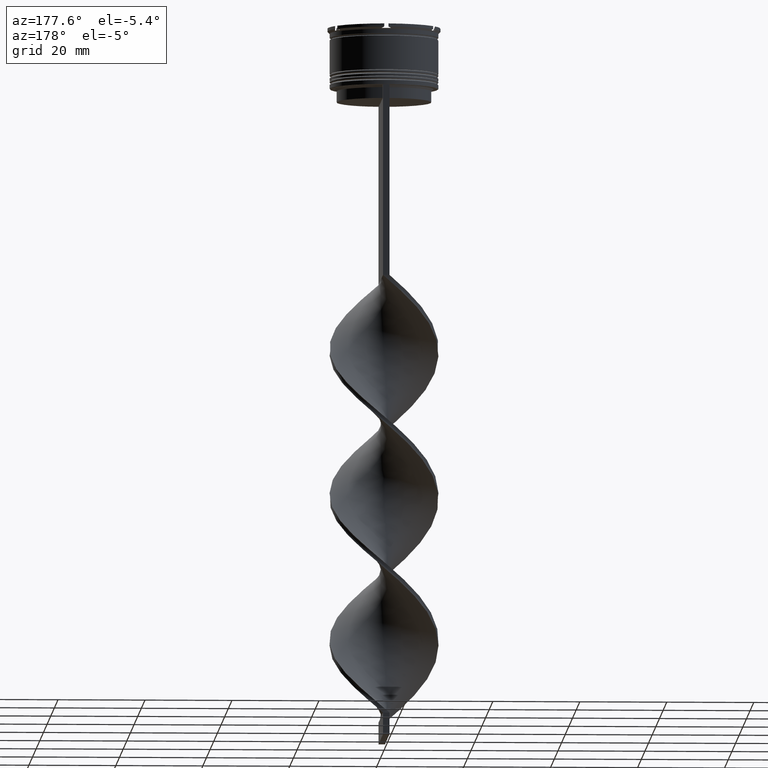
[diagram: clean part render]
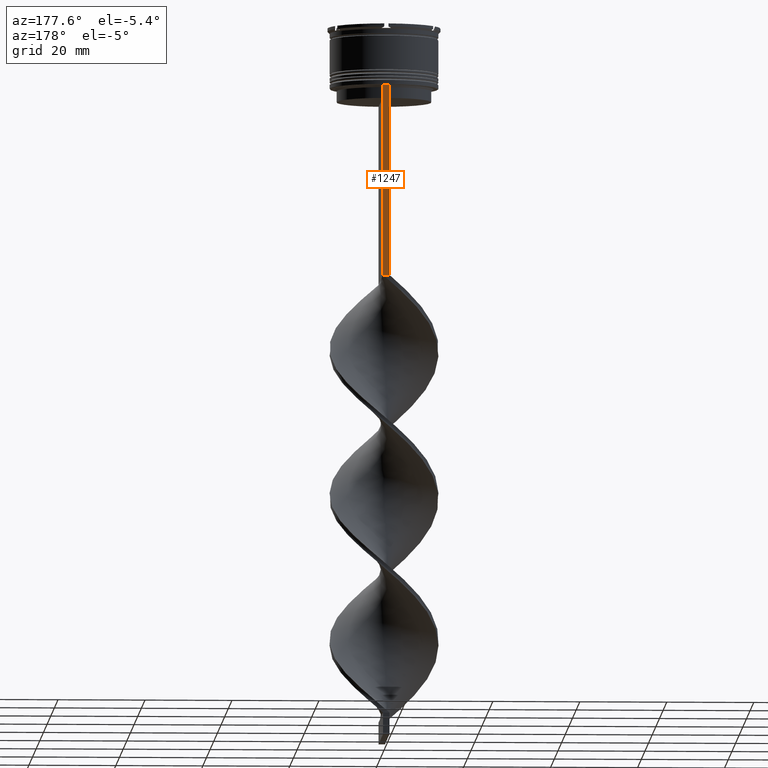
[diagram: same view with one face highlighted and labeled with its STEP entity id]
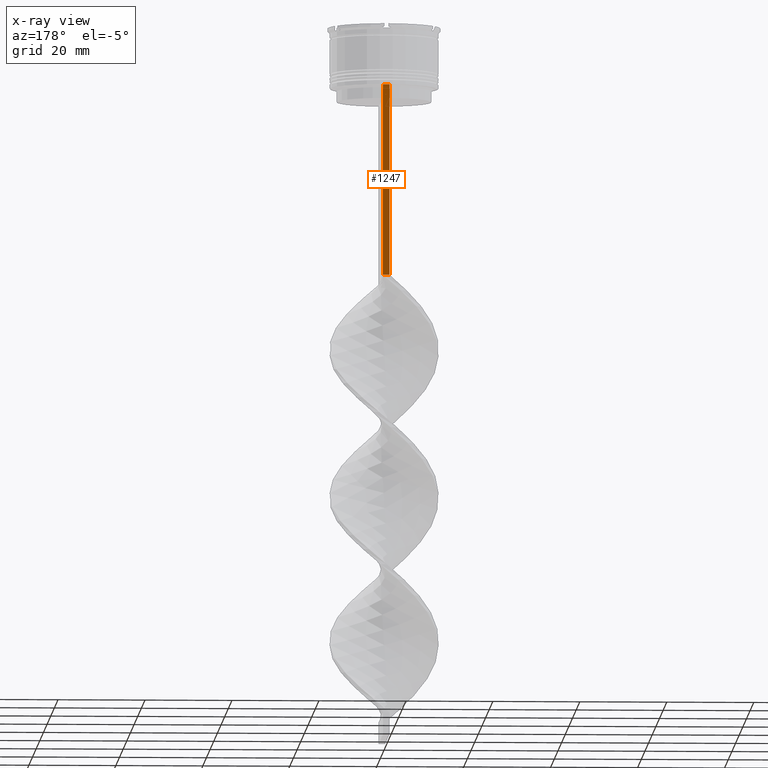
[diagram: x-ray of the same camera — body ghosted, the highlighted face saturated]
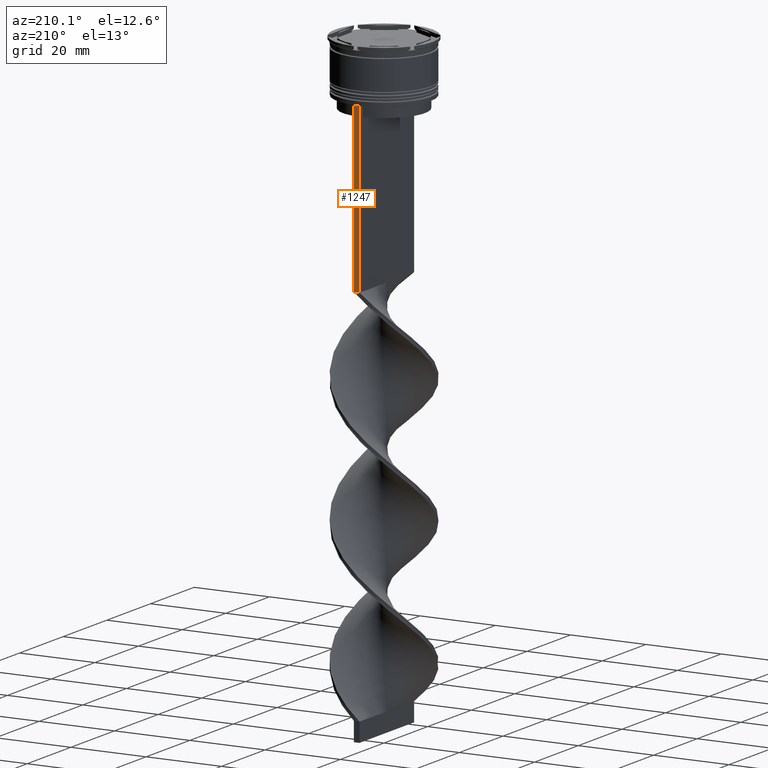
[diagram: same view with one face highlighted and labeled with its STEP entity id]
A machine part, auxiliary view. The second image highlights one B-rep face of the part: STEP entity #1247.
The next image is the same camera in x-ray: the body ghosted, the highlighted face saturated — about 0% of this face is hidden behind the body in this view.
A second angle (auxiliary view) of the same face is appended — the face is thin or edge-on in the first view.
In plain terms, the highlighted planar face has unit normal (0, -1, -0).
Its self-contained STEP definition (entity closure, byte-faithful):
#61 = EDGE_CURVE ( 'NONE', #1621, #1283, #3430, .T. ) ;
#148 = VECTOR ( 'NONE', #3464, 1000.000000000000000 ) ;
#177 = DIRECTION ( 'NONE',  ( 0.000000000000000000, 0.000000000000000000, -1.000000000000000000 ) ) ;
#429 = VECTOR ( 'NONE', #1659, 1000.000000000000000 ) ;
#437 = DIRECTION ( 'NONE',  ( 0.000000000000000000, -1.000000000000000000, -0.000000000000000000 ) ) ;
#444 = EDGE_CURVE ( 'NONE', #807, #3587, #3068, .T. ) ;
#583 = CARTESIAN_POINT ( 'NONE',  ( 0.7500000000000002220, 12.50000000000000000, 11.04495957273638673 ) ) ;
#807 = VERTEX_POINT ( 'NONE', #904 ) ;
#904 = CARTESIAN_POINT ( 'NONE',  ( -0.7499999999999997780, 12.50000000000000000, -14.00000000000000178 ) ) ;
#995 = CARTESIAN_POINT ( 'NONE',  ( 0.7500000000000002220, 12.50000000000000000, -14.00000000000000178 ) ) ;
#1048 = EDGE_LOOP ( 'NONE', ( #2076, #2654, #1943, #1425 ) ) ;
#1247 = ADVANCED_FACE ( 'NONE', ( #3365 ), #1457, .F. ) ;
#1282 = CARTESIAN_POINT ( 'NONE',  ( 0.7500000000000002220, 12.50000000000000000, -14.00000000000000178 ) ) ;
#1283 = VERTEX_POINT ( 'NONE', #2717 ) ;
#1425 = ORIENTED_EDGE ( 'NONE', *, *, #2379, .T. ) ;
#1457 = PLANE ( 'NONE',  #1625 ) ;
#1510 = CARTESIAN_POINT ( 'NONE',  ( -0.7499999999999997780, 12.50000000000000000, -58.00000000000000000 ) ) ;
#1560 = LINE ( 'NONE', #4117, #148 ) ;
#1621 = VERTEX_POINT ( 'NONE', #995 ) ;
#1625 = AXIS2_PLACEMENT_3D ( 'NONE', #3699, #437, #2335 ) ;
#1659 = DIRECTION ( 'NONE',  ( 1.000000000000000000, 0.000000000000000000, 0.000000000000000000 ) ) ;
#1943 = ORIENTED_EDGE ( 'NONE', *, *, #61, .T. ) ;
#2076 = ORIENTED_EDGE ( 'NONE', *, *, #444, .F. ) ;
#2085 = VECTOR ( 'NONE', #177, 1000.000000000000000 ) ;
#2259 = LINE ( 'NONE', #1282, #429 ) ;
#2335 = DIRECTION ( 'NONE',  ( 0.000000000000000000, 0.000000000000000000, -1.000000000000000000 ) ) ;
#2379 = EDGE_CURVE ( 'NONE', #1283, #3587, #1560, .T. ) ;
#2654 = ORIENTED_EDGE ( 'NONE', *, *, #3132, .T. ) ;
#2717 = CARTESIAN_POINT ( 'NONE',  ( 0.7500000000000002220, 12.50000000000000000, -58.00000000000000000 ) ) ;
#2961 = VECTOR ( 'NONE', #4080, 1000.000000000000000 ) ;
#3068 = LINE ( 'NONE', #4028, #2085 ) ;
#3132 = EDGE_CURVE ( 'NONE', #807, #1621, #2259, .T. ) ;
#3365 = FACE_OUTER_BOUND ( 'NONE', #1048, .T. ) ;
#3430 = LINE ( 'NONE', #583, #2961 ) ;
#3464 = DIRECTION ( 'NONE',  ( -1.000000000000000000, 0.000000000000000000, 0.000000000000000000 ) ) ;
#3587 = VERTEX_POINT ( 'NONE', #1510 ) ;
#3699 = CARTESIAN_POINT ( 'NONE',  ( 0.7500000000000002220, 12.50000000000000000, 11.04495957273638673 ) ) ;
#4028 = CARTESIAN_POINT ( 'NONE',  ( -0.7499999999999997780, 12.50000000000000000, 11.04495957273638673 ) ) ;
#4080 = DIRECTION ( 'NONE',  ( 0.000000000000000000, 0.000000000000000000, -1.000000000000000000 ) ) ;
#4117 = CARTESIAN_POINT ( 'NONE',  ( 0.7500000000000002220, 12.50000000000000000, -58.00000000000000000 ) ) ;